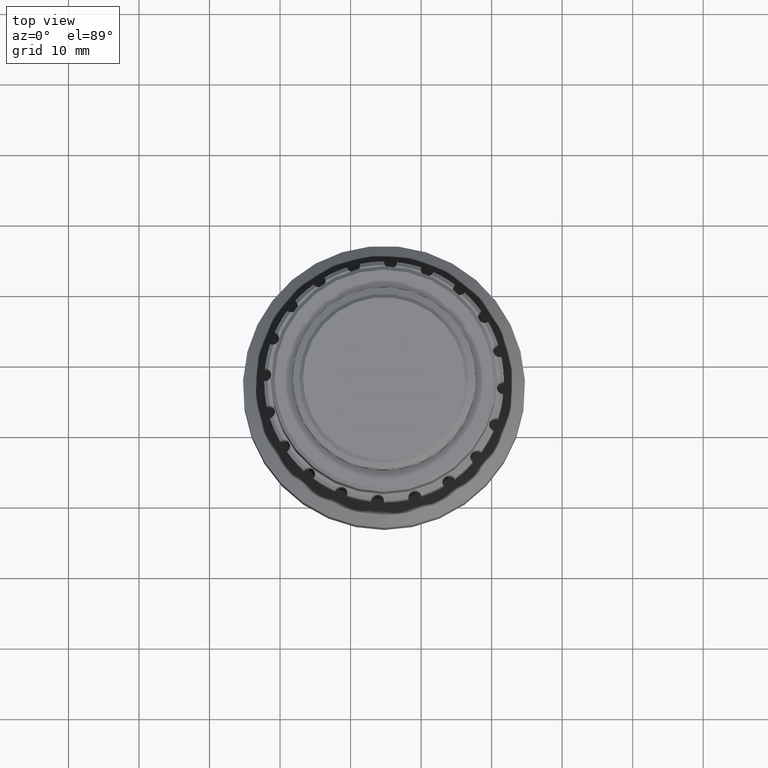
[diagram: clean part render]
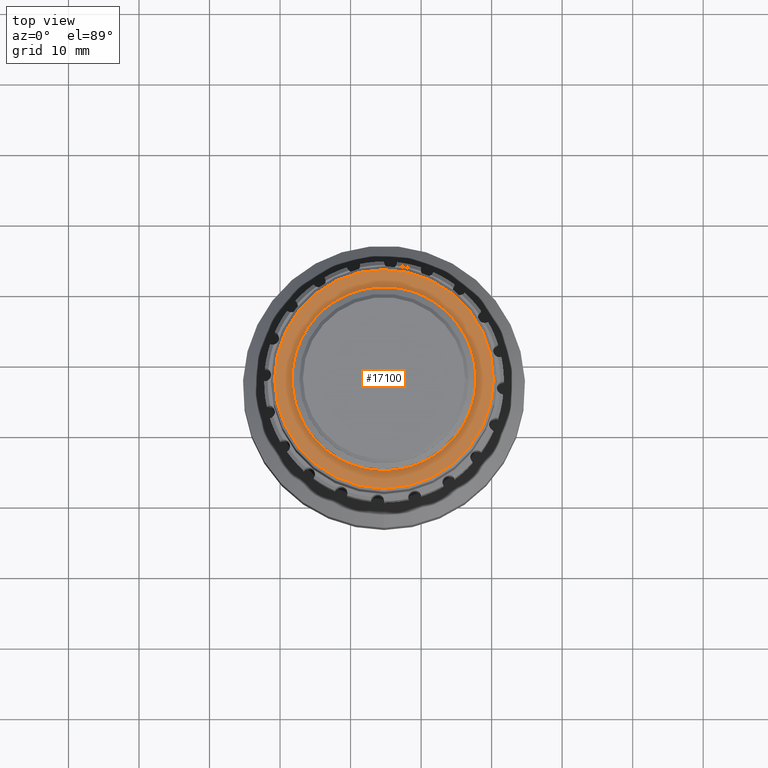
[diagram: same view with one face highlighted and labeled with its STEP entity id]
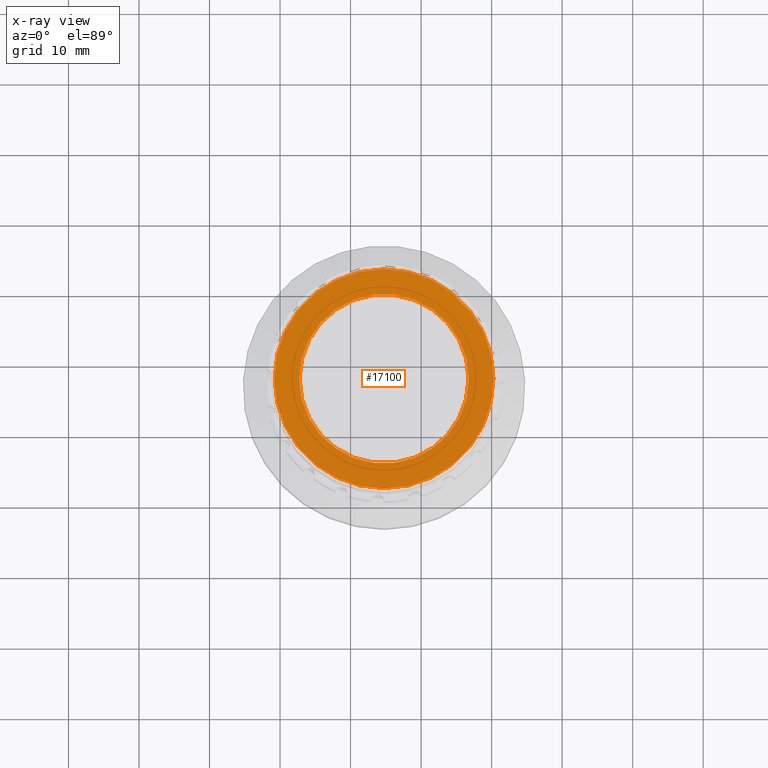
[diagram: x-ray of the same camera — body ghosted, the highlighted face saturated]
A machine part, top view. The second image highlights one B-rep face of the part: STEP entity #17100.
The next image is the same camera in x-ray: the body ghosted, the highlighted face saturated — about 0% of this face is hidden behind the body in this view.
In plain terms, the highlighted planar face has unit normal (0, 0, 1).
Its self-contained STEP definition (entity closure, byte-faithful):
#923 = PLANE ( 'NONE',  #1389 ) ;
#1389 = AXIS2_PLACEMENT_3D ( 'NONE', #7141, #15066, #8741 ) ;
#1487 = DIRECTION ( 'NONE',  ( 1.000000000000000000, 0.000000000000000000, 0.000000000000000000 ) ) ;
#2038 = CIRCLE ( 'NONE', #19671, 15.50000000000000000 ) ;
#3398 = CARTESIAN_POINT ( 'NONE',  ( -105.2614081662234184, -83.12817323313825568, 27.99999999999999645 ) ) ;
#3496 = EDGE_LOOP ( 'NONE', ( #12175 ) ) ;
#5106 = CIRCLE ( 'NONE', #13110, 11.99999999999999645 ) ;
#7141 = CARTESIAN_POINT ( 'NONE',  ( -105.2614081662234184, -83.12817323313825568, 27.99999999999999645 ) ) ;
#7180 = DIRECTION ( 'NONE',  ( 1.000000000000000000, 0.000000000000000000, 0.000000000000000000 ) ) ;
#7643 = EDGE_CURVE ( 'NONE', #16668, #16668, #5106, .T. ) ;
#8741 = DIRECTION ( 'NONE',  ( 1.000000000000000000, 0.000000000000000000, -0.000000000000000000 ) ) ;
#9564 = ORIENTED_EDGE ( 'NONE', *, *, #7643, .F. ) ;
#10532 = EDGE_LOOP ( 'NONE', ( #9564 ) ) ;
#10644 = CARTESIAN_POINT ( 'NONE',  ( -89.76140816622341845, -83.12817323313825568, 27.99999999999999645 ) ) ;
#12175 = ORIENTED_EDGE ( 'NONE', *, *, #12683, .T. ) ;
#12683 = EDGE_CURVE ( 'NONE', #13452, #13452, #2038, .T. ) ;
#12770 = FACE_BOUND ( 'NONE', #10532, .T. ) ;
#13110 = AXIS2_PLACEMENT_3D ( 'NONE', #19026, #17538, #7180 ) ;
#13452 = VERTEX_POINT ( 'NONE', #10644 ) ;
#15066 = DIRECTION ( 'NONE',  ( 0.000000000000000000, 0.000000000000000000, 1.000000000000000000 ) ) ;
#15067 = CARTESIAN_POINT ( 'NONE',  ( -93.26140816622343266, -83.12817323313825568, 27.99999999999999645 ) ) ;
#15528 = DIRECTION ( 'NONE',  ( 0.000000000000000000, 0.000000000000000000, 1.000000000000000000 ) ) ;
#15781 = FACE_OUTER_BOUND ( 'NONE', #3496, .T. ) ;
#16668 = VERTEX_POINT ( 'NONE', #15067 ) ;
#17100 = ADVANCED_FACE ( 'NONE', ( #15781, #12770 ), #923, .T. ) ;
#17538 = DIRECTION ( 'NONE',  ( 0.000000000000000000, 0.000000000000000000, 1.000000000000000000 ) ) ;
#19026 = CARTESIAN_POINT ( 'NONE',  ( -105.2614081662234184, -83.12817323313825568, 27.99999999999999645 ) ) ;
#19671 = AXIS2_PLACEMENT_3D ( 'NONE', #3398, #15528, #1487 ) ;